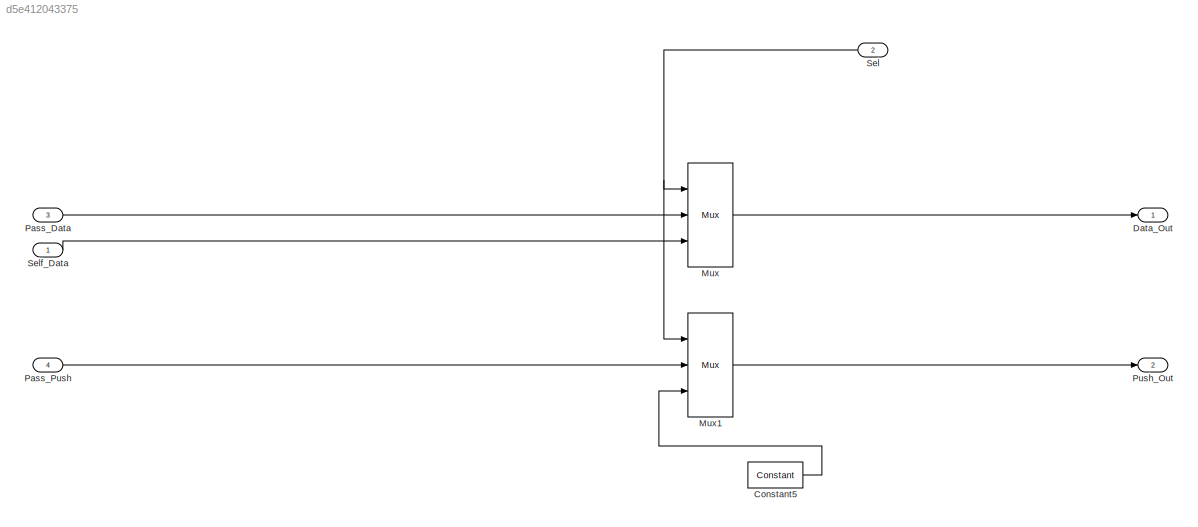
MODEL slx_d5e412043375
KIND model
CONFIG AbsTol = auto
CONFIG EnableMultiTasking = off
CONFIG FixedStep = 1000000
CONFIG MaxStep = auto
CONFIG MinStep = auto
CONFIG RelTol = 1e-3
CONFIG SampleTimeConstraint = Unconstrained
CONFIG SolverName = FixedStepAuto
CONFIG StartTime = 0.0
CONFIG StopTime = double(sim_length)
BLOCK [Reference] Constant5  REF=hdlBasic/Constant
  Ports = [0, 1]
  SourceBlock = hdlBasic/Constant
  SourceType = Constant Block Block
BLOCK [Outport] Data_Out
BLOCK [Reference] Mux  REF=hdlBasic/Mux
  Ports = [3, 1]
  SourceBlock = hdlBasic/Mux
  SourceType = Bus Multiplexer Block
BLOCK [Reference] Mux1  REF=hdlBasic/Mux
  Ports = [3, 1]
  SourceBlock = hdlBasic/Mux
  SourceType = Bus Multiplexer Block
BLOCK [Inport] Pass_Data
  Port = 3
BLOCK [Inport] Pass_Push
  Port = 4
BLOCK [Outport] Push_Out
  Port = 2
BLOCK [Inport] Sel
  Port = 2
BLOCK [Inport] Self_Data
LINE Constant5:1 -> Mux1:3
LINE Mux1:1 -> Push_Out:1
LINE Mux:1 -> Data_Out:1
LINE Pass_Data:1 -> Mux:2
LINE Pass_Push:1 -> Mux1:2
NET Sel:1 -> Mux1:1, Mux:1
LINE Self_Data:1 -> Mux:3
note: NET lines group one-source signal fan-out (src -> all destinations, sorted); 1:1 wires keep LINE
